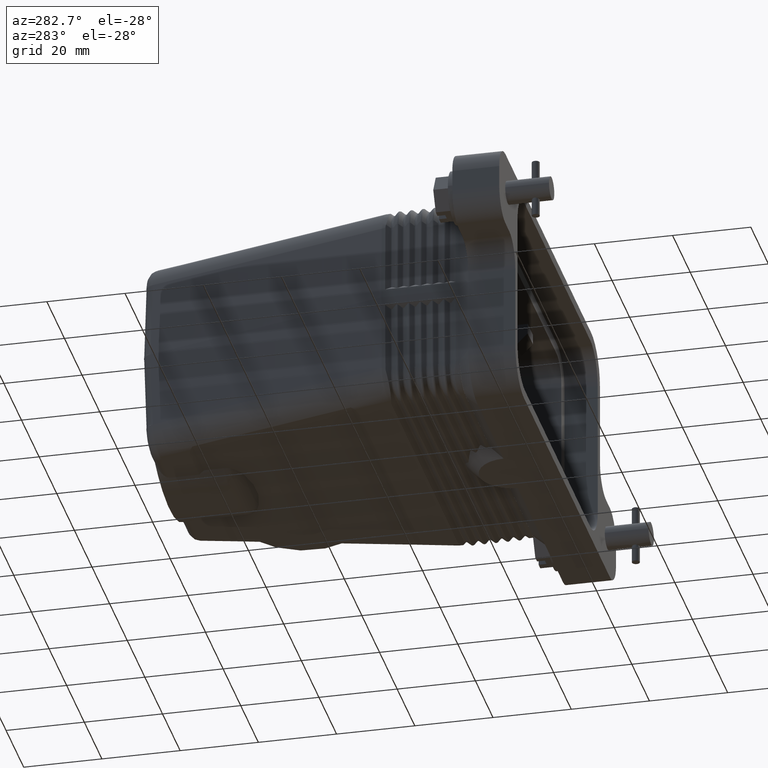
[diagram: clean part render]
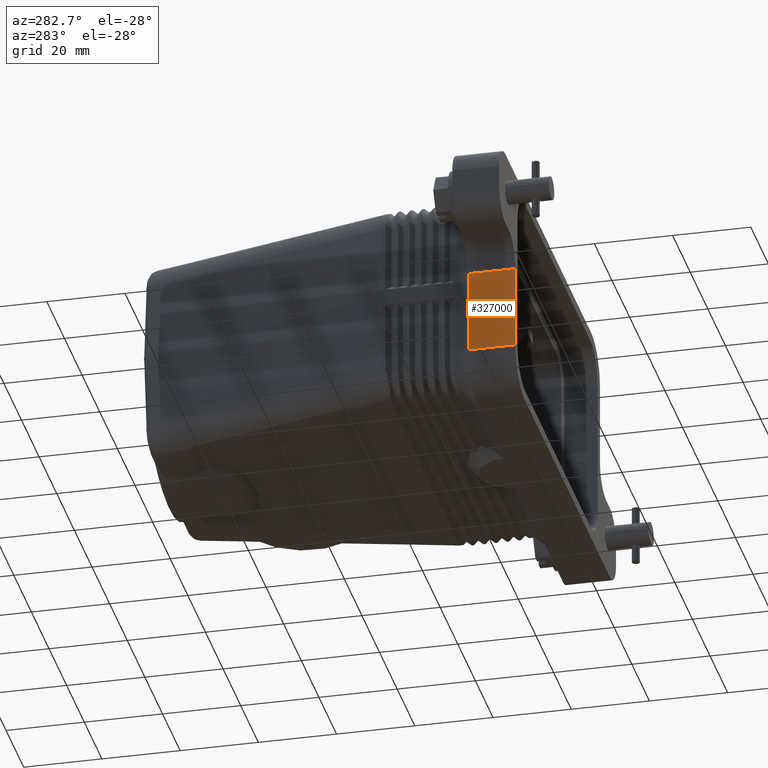
[diagram: same view with one face highlighted and labeled with its STEP entity id]
A machine part, auxiliary view. The second image highlights one B-rep face of the part: STEP entity #327000.
In plain terms, the highlighted planar face has unit normal (-1, 0, 0).
Its self-contained STEP definition (entity closure, byte-faithful):
#5740=CARTESIAN_POINT('',(71.384906,-3.705857,-45.));
#5750=VERTEX_POINT('',#5740);
#5780=CARTESIAN_POINT('',(71.384906,-3.705857,0.));
#5790=DIRECTION('',(0.,0.,-1.));
#5800=VECTOR('',#5790,1.);
#5810=LINE('',#5780,#5800);
#5820=CARTESIAN_POINT('',(71.384906,-3.705857,-23.5087275324642));
#5830=VERTEX_POINT('',#5820);
#5840=EDGE_CURVE('',#5830,#5750,#5810,.T.);
#317730=CARTESIAN_POINT('',(71.384906,8.294143,-23.5087275324642));
#317740=VERTEX_POINT('',#317730);
#317770=CARTESIAN_POINT('',(71.384906,8.294143,0.));
#317780=DIRECTION('',(0.,0.,1.));
#317790=VECTOR('',#317780,1.);
#317800=LINE('',#317770,#317790);
#317810=CARTESIAN_POINT('',(71.384906,8.294143,-45.));
#317820=VERTEX_POINT('',#317810);
#317830=EDGE_CURVE('',#317820,#317740,#317800,.T.);
#326790=CARTESIAN_POINT('',(71.384906,8.294143,0.));
#326800=DIRECTION('',(-1.,0.,0.));
#326810=DIRECTION('',(0.,1.,0.));
#326820=AXIS2_PLACEMENT_3D('',#326790,#326800,#326810);
#326830=PLANE('',#326820);
#326840=ORIENTED_EDGE('',*,*,#317830,.F.);
#326850=CARTESIAN_POINT('',(71.384906,0.,-23.5087275324642));
#326860=DIRECTION('',(0.,-1.,0.));
#326870=VECTOR('',#326860,1.);
#326880=LINE('',#326850,#326870);
#326890=EDGE_CURVE('',#317740,#5830,#326880,.T.);
#326900=ORIENTED_EDGE('',*,*,#326890,.F.);
#326910=ORIENTED_EDGE('',*,*,#5840,.F.);
#326920=CARTESIAN_POINT('',(71.384906,0.,-45.));
#326930=DIRECTION('',(0.,1.,0.));
#326940=VECTOR('',#326930,1.);
#326950=LINE('',#326920,#326940);
#326960=EDGE_CURVE('',#5750,#317820,#326950,.T.);
#326970=ORIENTED_EDGE('',*,*,#326960,.F.);
#326980=EDGE_LOOP('',(#326970,#326910,#326900,#326840));
#326990=FACE_OUTER_BOUND('',#326980,.T.);
#327000=ADVANCED_FACE('',(#326990),#326830,.T.);